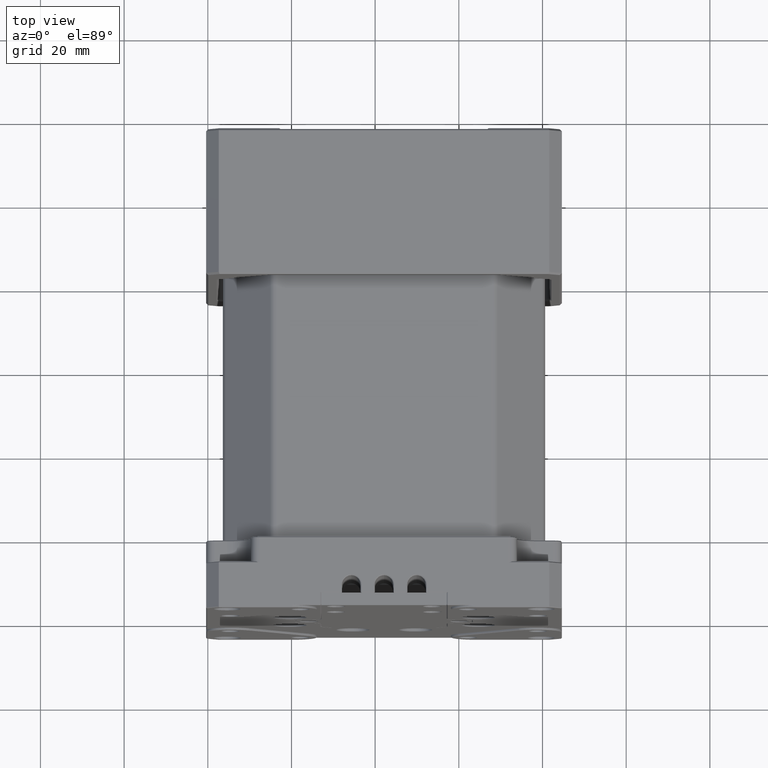
[diagram: clean part render]
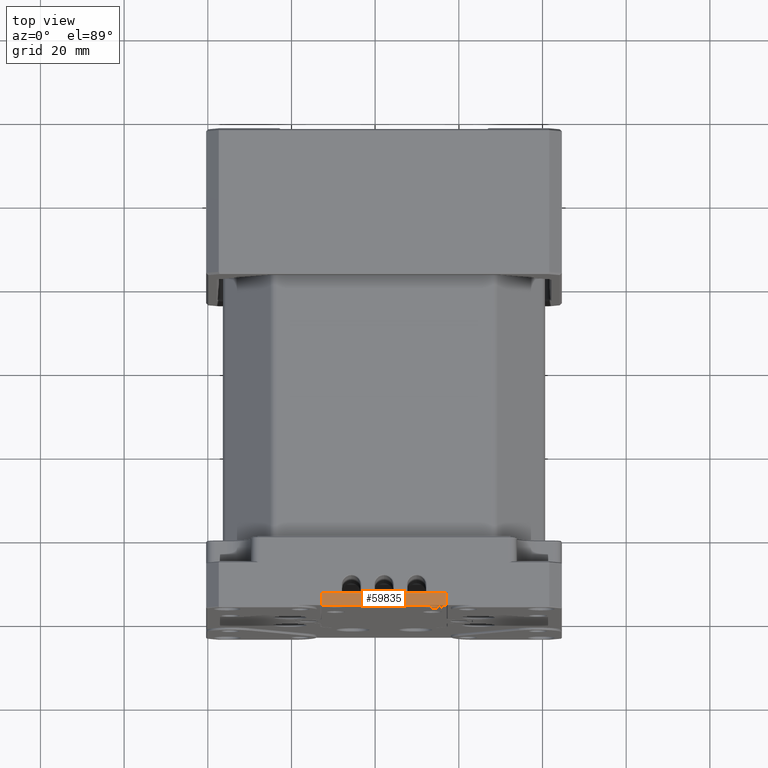
[diagram: same view with one face highlighted and labeled with its STEP entity id]
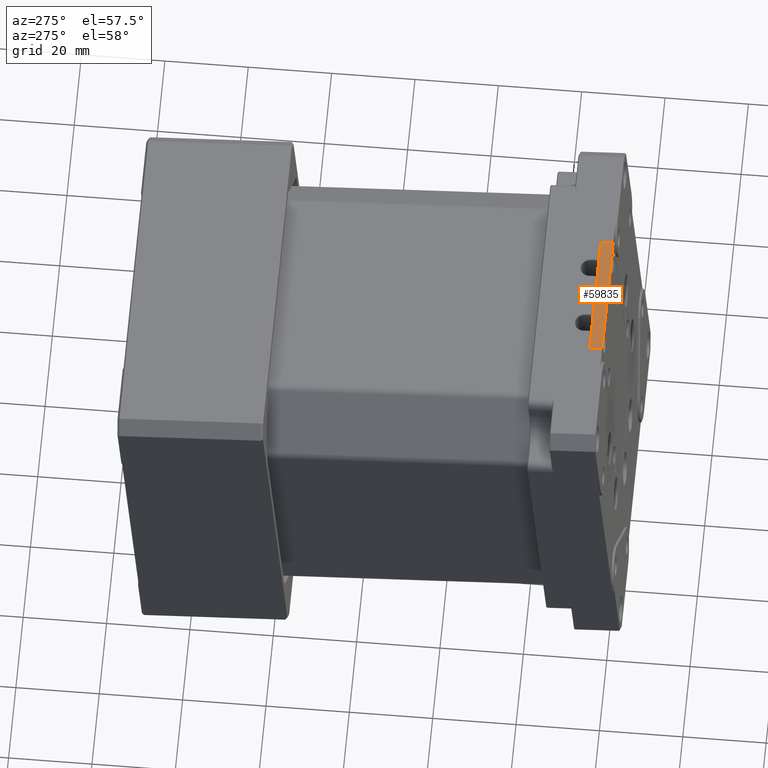
[diagram: same view with one face highlighted and labeled with its STEP entity id]
A machine part, top view. The second image highlights one B-rep face of the part: STEP entity #59835.
A second angle (auxiliary view) of the same face is appended — the face is thin or edge-on in the first view.
In plain terms, the highlighted planar face has unit normal (0, -0.0746, -0.9972).
Its self-contained STEP definition (entity closure, byte-faithful):
#4577 = DIRECTION ( 'NONE',  ( 3.555628207188109821E-16, -0.07459168845773749001, -0.9972141595530139568 ) ) ;
#4645 = EDGE_CURVE ( 'NONE', #33367, #37758, #70037, .T. ) ;
#4946 = CARTESIAN_POINT ( 'NONE',  ( 81.11464020910889872, -36.54408216515349750, 27.01235717332640007 ) ) ;
#5701 = DIRECTION ( 'NONE',  ( 9.298117831235689970E-16, -0.9972141595530138458, 0.07459168845773747614 ) ) ;
#5787 = AXIS2_PLACEMENT_3D ( 'NONE', #4946, #4577, #26830 ) ;
#9000 = ORIENTED_EDGE ( 'NONE', *, *, #15344, .F. ) ;
#11283 = CARTESIAN_POINT ( 'NONE',  ( 117.1146402091089982, -33.55243968649444497, 26.78858210795320005 ) ) ;
#11954 = EDGE_CURVE ( 'NONE', #40555, #33367, #54178, .T. ) ;
#15344 = EDGE_CURVE ( 'NONE', #40555, #16096, #38353, .T. ) ;
#16096 = VERTEX_POINT ( 'NONE', #20885 ) ;
#19830 = CARTESIAN_POINT ( 'NONE',  ( 87.11464020910888451, -36.54408216515349750, 27.01235717332640007 ) ) ;
#20885 = CARTESIAN_POINT ( 'NONE',  ( 117.1146402091089982, -36.54408216515349750, 27.01235717332640007 ) ) ;
#21288 = VECTOR ( 'NONE', #41078, 1000.000000000000000 ) ;
#22111 = VECTOR ( 'NONE', #64657, 1000.000000000000000 ) ;
#24255 = LINE ( 'NONE', #35720, #21288 ) ;
#26463 = PLANE ( 'NONE',  #5787 ) ;
#26830 = DIRECTION ( 'NONE',  ( 0.000000000000000000, -0.9972141595530138458, 0.07459168845773747614 ) ) ;
#32310 = CARTESIAN_POINT ( 'NONE',  ( 81.11464020910889872, -33.55243968649449471, 26.78858210795320005 ) ) ;
#33367 = VERTEX_POINT ( 'NONE', #64499 ) ;
#35720 = CARTESIAN_POINT ( 'NONE',  ( 81.11464020910889872, -36.54408216515349750, 27.01235717332640007 ) ) ;
#37758 = VERTEX_POINT ( 'NONE', #19830 ) ;
#38353 = LINE ( 'NONE', #60256, #57684 ) ;
#40555 = VERTEX_POINT ( 'NONE', #11283 ) ;
#41078 = DIRECTION ( 'NONE',  ( -1.000000000000000000, -9.020562075079400835E-16, -2.870967352741615248E-16 ) ) ;
#42444 = ORIENTED_EDGE ( 'NONE', *, *, #53317, .F. ) ;
#49112 = EDGE_LOOP ( 'NONE', ( #57586, #65141, #42444, #9000 ) ) ;
#52443 = VECTOR ( 'NONE', #53822, 1000.000000000000114 ) ;
#53317 = EDGE_CURVE ( 'NONE', #16096, #37758, #24255, .T. ) ;
#53822 = DIRECTION ( 'NONE',  ( 9.298117831235689970E-16, -0.9972141595530138458, 0.07459168845773747614 ) ) ;
#54178 = LINE ( 'NONE', #32310, #22111 ) ;
#57586 = ORIENTED_EDGE ( 'NONE', *, *, #11954, .T. ) ;
#57684 = VECTOR ( 'NONE', #5701, 1000.000000000000114 ) ;
#59835 = ADVANCED_FACE ( 'NONE', ( #70281 ), #26463, .F. ) ;
#60256 = CARTESIAN_POINT ( 'NONE',  ( 117.1146402091089982, -33.55243968649444497, 26.78858210795320005 ) ) ;
#64499 = CARTESIAN_POINT ( 'NONE',  ( 87.11464020910888451, -33.55243968649449471, 26.78858210795320005 ) ) ;
#64657 = DIRECTION ( 'NONE',  ( -1.000000000000000000, -9.020562075079400835E-16, -2.870967352741615248E-16 ) ) ;
#65141 = ORIENTED_EDGE ( 'NONE', *, *, #4645, .T. ) ;
#68982 = CARTESIAN_POINT ( 'NONE',  ( 87.11464020910888451, -33.55243968649449471, 26.78858210795314676 ) ) ;
#70037 = LINE ( 'NONE', #68982, #52443 ) ;
#70281 = FACE_OUTER_BOUND ( 'NONE', #49112, .T. ) ;